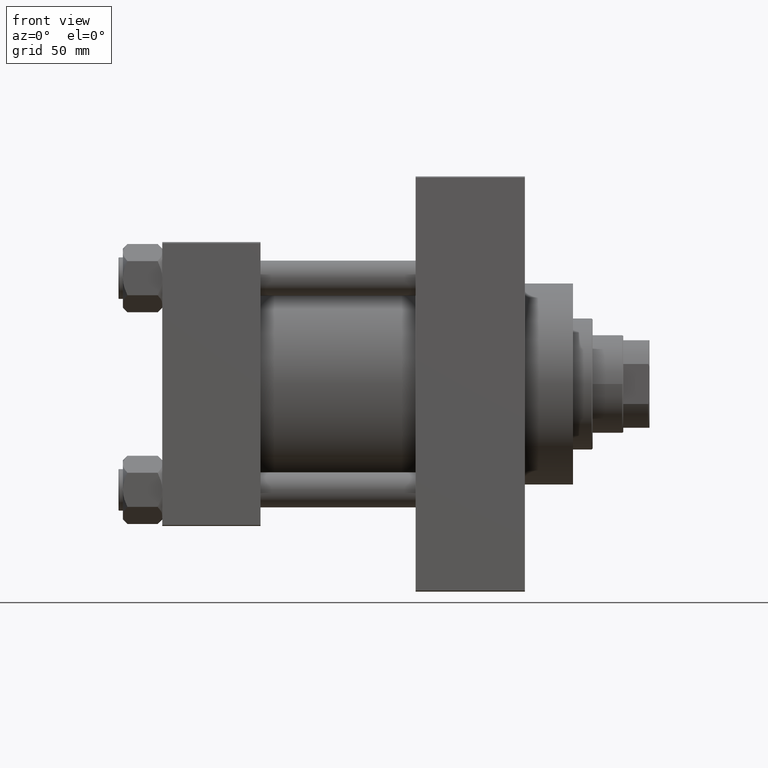
[diagram: clean part render]
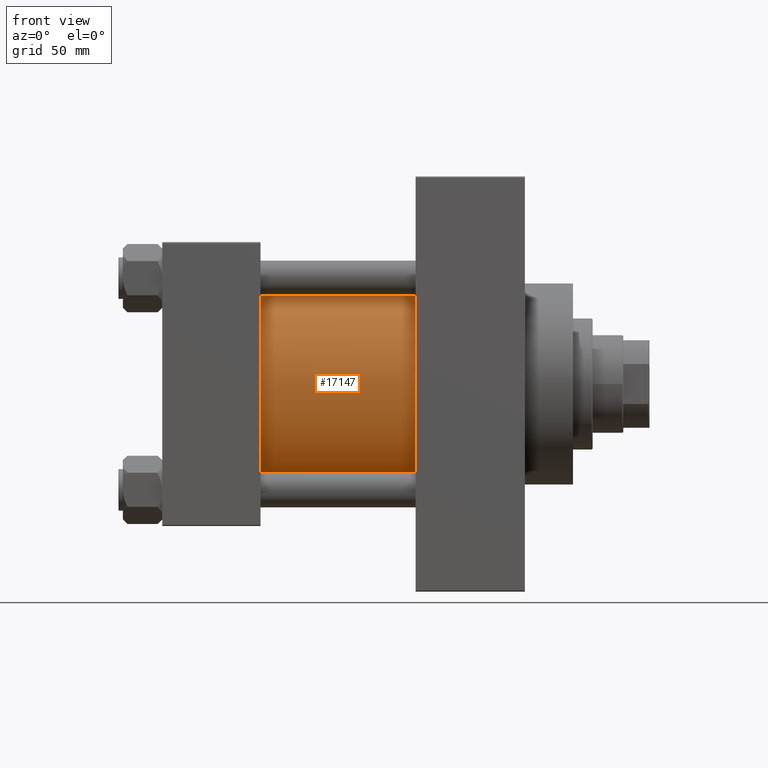
[diagram: same view with one face highlighted and labeled with its STEP entity id]
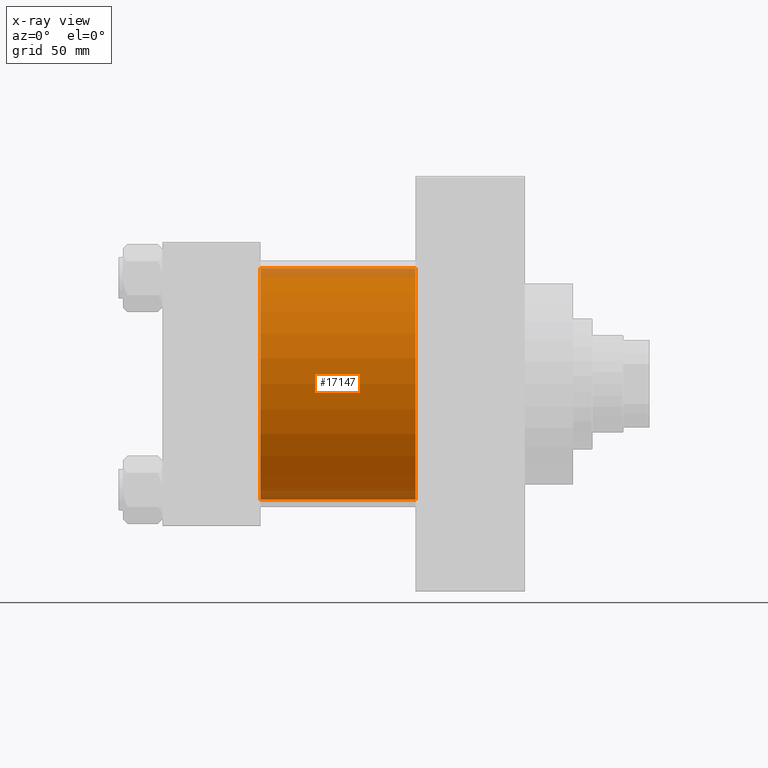
[diagram: x-ray of the same camera — body ghosted, the highlighted face saturated]
A machine part, front view. The second image highlights one B-rep face of the part: STEP entity #17147.
The next image is the same camera in x-ray: the body ghosted, the highlighted face saturated — about 8% of this face is hidden behind the body in this view.
In plain terms, the highlighted cylindrical surface (partial cylindrical patch) has radius 53 mm, axis along (-1, -0, -0).
Its self-contained STEP definition (entity closure, byte-faithful):
#4059 = DIRECTION ( 'NONE',  ( 1.000000000000000000, -0.000000000000000000, 0.000000000000000000 ) ) ;
#5754 = CARTESIAN_POINT ( 'NONE',  ( 115.9999999999999858, -2.602085213965210642E-15, 0.000000000000000000 ) ) ;
#6833 = CARTESIAN_POINT ( 'NONE',  ( 115.9999999999999858, 3.888542821515762466E-15, -53.00000000000000711 ) ) ;
#7224 = CYLINDRICAL_SURFACE ( 'NONE', #47267, 53.00000000000000711 ) ;
#12019 = DIRECTION ( 'NONE',  ( 0.000000000000000000, 0.000000000000000000, 1.000000000000000000 ) ) ;
#14572 = EDGE_LOOP ( 'NONE', ( #17245, #32720, #27692, #25894 ) ) ;
#16858 = DIRECTION ( 'NONE',  ( 0.000000000000000000, 0.000000000000000000, -1.000000000000000000 ) ) ;
#17147 = ADVANCED_FACE ( 'NONE', ( #47487 ), #7224, .T. ) ;
#17245 = ORIENTED_EDGE ( 'NONE', *, *, #35339, .F. ) ;
#18324 = DIRECTION ( 'NONE',  ( -1.000000000000000000, -0.000000000000000000, -0.000000000000000000 ) ) ;
#20469 = DIRECTION ( 'NONE',  ( 1.000000000000000000, 0.000000000000000000, 0.000000000000000000 ) ) ;
#21924 = CARTESIAN_POINT ( 'NONE',  ( 115.9999999999999858, -2.602085213965210642E-15, 0.000000000000000000 ) ) ;
#22136 = EDGE_CURVE ( 'NONE', #35761, #29065, #36629, .T. ) ;
#25140 = EDGE_CURVE ( 'NONE', #25470, #26955, #44308, .T. ) ;
#25156 = LINE ( 'NONE', #6833, #33082 ) ;
#25470 = VERTEX_POINT ( 'NONE', #31901 ) ;
#25894 = ORIENTED_EDGE ( 'NONE', *, *, #22136, .T. ) ;
#26112 = CARTESIAN_POINT ( 'NONE',  ( 45.00000000000000000, 3.888542821515762466E-15, -53.00000000000000711 ) ) ;
#26449 = CARTESIAN_POINT ( 'NONE',  ( 115.9999999999999858, 3.888542821515762466E-15, -53.00000000000000711 ) ) ;
#26955 = VERTEX_POINT ( 'NONE', #26449 ) ;
#27692 = ORIENTED_EDGE ( 'NONE', *, *, #46367, .T. ) ;
#27961 = CARTESIAN_POINT ( 'NONE',  ( 45.00000000000000000, -2.602085213965210642E-15, 53.00000000000000711 ) ) ;
#29065 = VERTEX_POINT ( 'NONE', #26112 ) ;
#29405 = DIRECTION ( 'NONE',  ( 0.000000000000000000, 0.000000000000000000, 1.000000000000000000 ) ) ;
#29622 = CARTESIAN_POINT ( 'NONE',  ( 45.00000000000000000, -2.602085213965210642E-15, 0.000000000000000000 ) ) ;
#30131 = LINE ( 'NONE', #33263, #31393 ) ;
#31239 = AXIS2_PLACEMENT_3D ( 'NONE', #29622, #4059, #12019 ) ;
#31393 = VECTOR ( 'NONE', #43880, 1000.000000000000000 ) ;
#31901 = CARTESIAN_POINT ( 'NONE',  ( 115.9999999999999858, -2.602085213965210642E-15, 53.00000000000000711 ) ) ;
#32720 = ORIENTED_EDGE ( 'NONE', *, *, #25140, .F. ) ;
#33082 = VECTOR ( 'NONE', #39869, 1000.000000000000000 ) ;
#33263 = CARTESIAN_POINT ( 'NONE',  ( 115.9999999999999858, -2.602085213965210642E-15, 53.00000000000000711 ) ) ;
#35339 = EDGE_CURVE ( 'NONE', #26955, #29065, #25156, .T. ) ;
#35761 = VERTEX_POINT ( 'NONE', #27961 ) ;
#36629 = CIRCLE ( 'NONE', #31239, 53.00000000000000711 ) ;
#39869 = DIRECTION ( 'NONE',  ( -1.000000000000000000, -0.000000000000000000, -0.000000000000000000 ) ) ;
#42763 = AXIS2_PLACEMENT_3D ( 'NONE', #5754, #20469, #16858 ) ;
#43880 = DIRECTION ( 'NONE',  ( -1.000000000000000000, -0.000000000000000000, -0.000000000000000000 ) ) ;
#44308 = CIRCLE ( 'NONE', #42763, 53.00000000000000711 ) ;
#46367 = EDGE_CURVE ( 'NONE', #25470, #35761, #30131, .T. ) ;
#47267 = AXIS2_PLACEMENT_3D ( 'NONE', #21924, #18324, #29405 ) ;
#47487 = FACE_OUTER_BOUND ( 'NONE', #14572, .T. ) ;